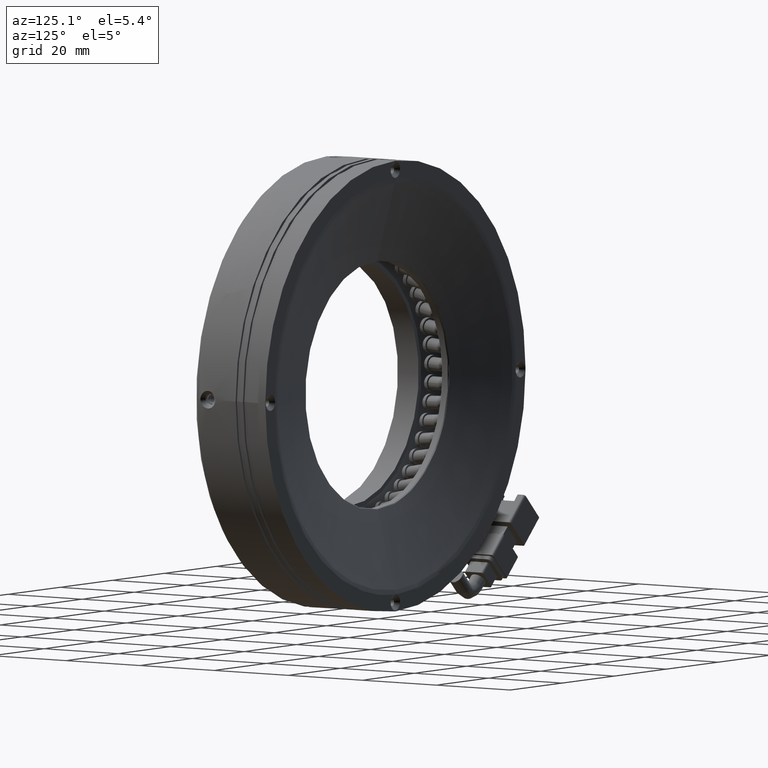
[diagram: clean part render]
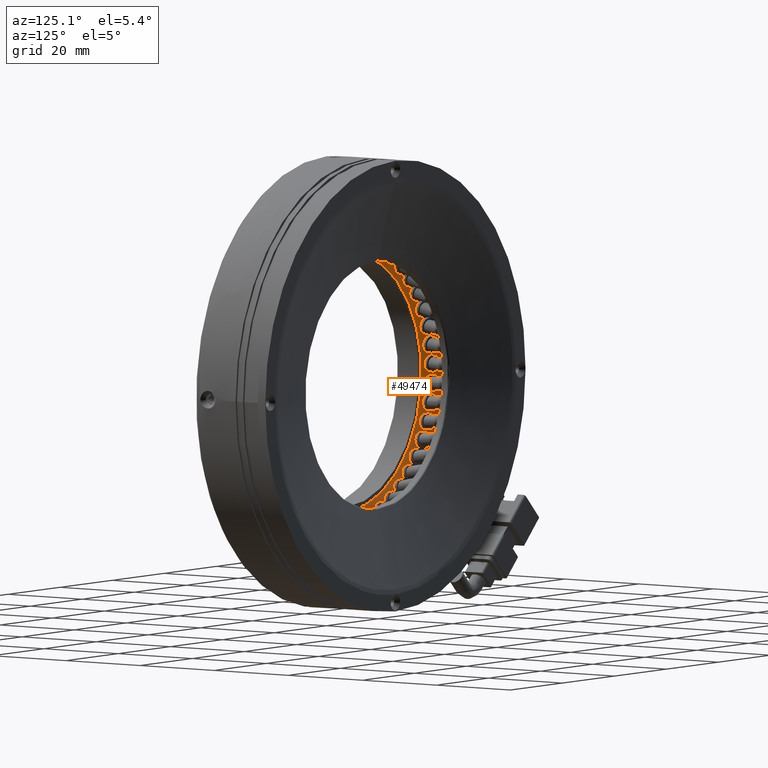
[diagram: same view with one face highlighted and labeled with its STEP entity id]
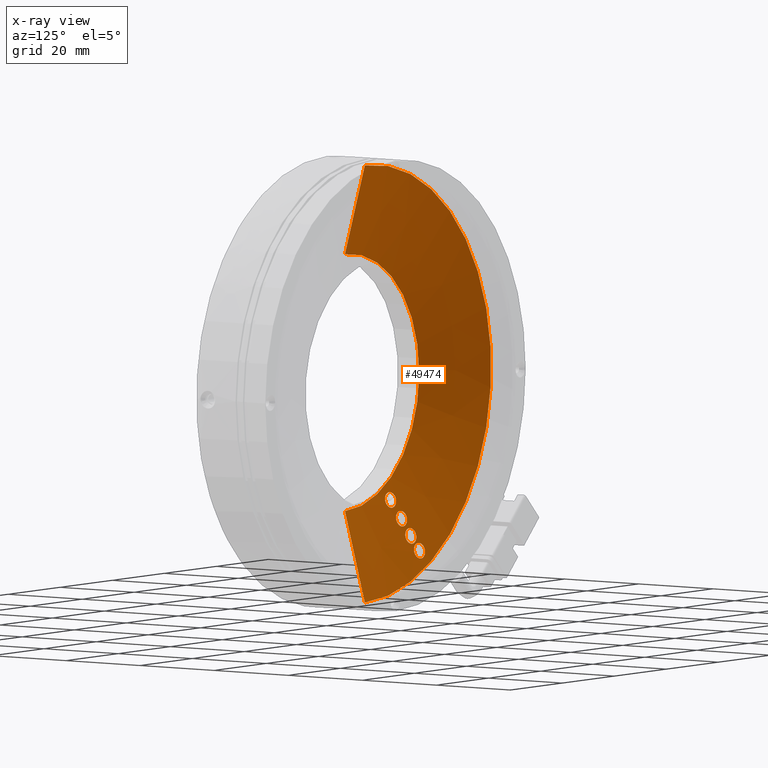
[diagram: x-ray of the same camera — body ghosted, the highlighted face saturated]
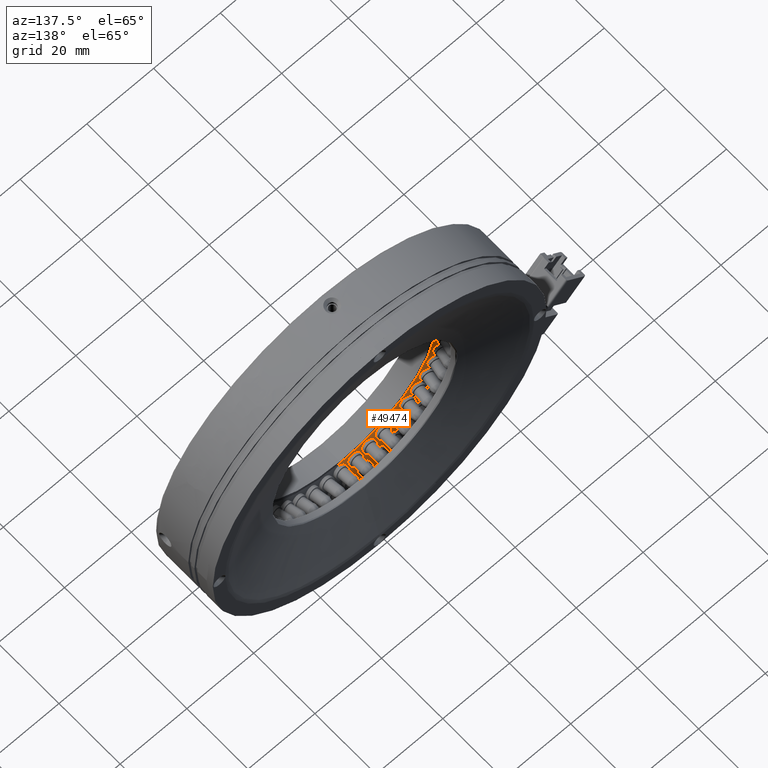
[diagram: same view with one face highlighted and labeled with its STEP entity id]
A machine part, auxiliary view. The second image highlights one B-rep face of the part: STEP entity #49474.
The next image is the same camera in x-ray: the body ghosted, the highlighted face saturated — about 0% of this face is hidden behind the body in this view.
A second angle (auxiliary view) of the same face is appended — the face is thin or edge-on in the first view.
In plain terms, the highlighted conical surface has half-angle 75 deg.
Its self-contained STEP definition (entity closure, byte-faithful):
#108 = ORIENTED_EDGE ( 'NONE', *, *, #99272, .T. ) ;
#124 = CARTESIAN_POINT ( 'NONE',  ( -20.07134492619202600, 11.15732163999265200, -37.14455200739044500 ) ) ;
#698 = CARTESIAN_POINT ( 'NONE',  ( -21.07270726914244100, 11.83276224320525400, -39.48731379058229900 ) ) ;
#2049 = EDGE_CURVE ( 'NONE', #74162, #163398, #143065, .T. ) ;
#2576 = CARTESIAN_POINT ( 'NONE',  ( -15.96565707125699900, 8.904084396380412200, -29.79405321790986600 ) ) ;
#2878 = CARTESIAN_POINT ( 'NONE',  ( -14.76085855152787700, 7.909257508632173900, -26.14620323783338000 ) ) ;
#3134 = CARTESIAN_POINT ( 'NONE',  ( -17.41759983586668200, 9.585898510337925100, -31.88627782372348200 ) ) ;
#3451 = CARTESIAN_POINT ( 'NONE',  ( -14.43473660028359800, 8.407522781328308900, -28.56283958477764900 ) ) ;
#3514 = CARTESIAN_POINT ( 'NONE',  ( -19.39775535826996500, 11.83998661717176900, -40.48733607017732800 ) ) ;
#4100 = CARTESIAN_POINT ( 'NONE',  ( -18.36470448374304000, 11.61614779560262900, -40.09593682916511200 ) ) ;
#4682 = CARTESIAN_POINT ( 'NONE',  ( -18.36565464677668300, 11.01315418087489000, -37.52942494602260800 ) ) ;
#4833 = CARTESIAN_POINT ( 'NONE',  ( -12.50610403647489700, 8.193404171267390600, -28.74361255428835100 ) ) ;
#5409 = CARTESIAN_POINT ( 'NONE',  ( -11.99584902476167300, 7.540095599657065300, -26.24095984930117700 ) ) ;
#5514 = DIRECTION ( 'NONE',  ( 0.0000000000000000000, 6.086749038515109300E-017, -1.000000000000000000 ) ) ;
#7036 = B_SPLINE_CURVE_WITH_KNOTS ( 'NONE', 3,
 ( #41933, #69531, #2576, #96559, #16005, #110036, #29522, #123604, #43086, #137167, #56575, #150724, #70110, #164221, #83626, #3134, #97124, #16568, #110629, #30104, #124177, #43657, #137757, #57142, #151293, #70692, #164796, #84215 ),
 .UNSPECIFIED., .F., .F.,
 ( 4, 2, 2, 2, 2, 2, 2, 2, 2, 2, 2, 2, 2, 4 ),
 ( 0.0000000000000000000, 0.0003418891721798383700, 0.0006837783443596767400, 0.001025667516539515000, 0.001367556688719353500, 0.002051335033079043000, 0.002735113377438732600, 0.003077002549618592500, 0.003418891721798452500, 0.003760780893978313300, 0.004102670066158173700, 0.004444559238338033200, 0.004786448410517893600, 0.005470226754877596100 ),
 .UNSPECIFIED. ) ;
#7398 = CARTESIAN_POINT ( 'NONE',  ( -15.91069010748489100, 10.18336687317798800, -35.34472451910326600 ) ) ;
#7972 = CARTESIAN_POINT ( 'NONE',  ( -17.41743837209346100, 10.00041139176695800, -33.70666807958742300 ) ) ;
#10526 = CARTESIAN_POINT ( 'NONE',  ( -14.86907633295296400, 9.497812917688504400, -33.00030870043931200 ) ) ;
#10762 = EDGE_LOOP ( 'NONE', ( #15898, #47278 ) ) ;
#10951 = CARTESIAN_POINT ( 'NONE',  ( 2.894644667477719800, 12.45126820901290700, -48.50000000000002100 ) ) ;
#11105 = CARTESIAN_POINT ( 'NONE',  ( -14.35862220822112300, 8.844565421112372800, -30.49768298695752500 ) ) ;
#11143 = CARTESIAN_POINT ( 'NONE',  ( 2.894644667477713500, 12.45126820901289500, 0.0000000000000000000 ) ) ;
#11979 = CARTESIAN_POINT ( 'NONE',  ( -17.64653836013272300, 10.03075272494898200, -33.69963600091436000 ) ) ;
#12536 = CARTESIAN_POINT ( 'NONE',  ( -19.32601856964397400, 10.74492025672024000, -35.79578931511415600 ) ) ;
#13489 = CARTESIAN_POINT ( 'NONE',  ( -20.38092093954148300, 11.23032824600114800, -37.27293837282363100 ) ) ;
#13764 = EDGE_CURVE ( 'NONE', #49903, #37456, #133724, .T. ) ;
#14046 = CARTESIAN_POINT ( 'NONE',  ( -20.89304404413490000, 11.87452964537149600, -39.77756570517183100 ) ) ;
#15898 = ORIENTED_EDGE ( 'NONE', *, *, #2049, .T. ) ;
#16005 = CARTESIAN_POINT ( 'NONE',  ( -16.29720917292671000, 8.966708800526667700, -29.85973840403716300 ) ) ;
#16313 = CARTESIAN_POINT ( 'NONE',  ( -15.06325039126045200, 8.086033510252285300, -26.73794146186126900 ) ) ;
#16568 = CARTESIAN_POINT ( 'NONE',  ( -17.29837563520305500, 9.640569860904493600, -32.20303925893775000 ) ) ;
#16882 = CARTESIAN_POINT ( 'NONE',  ( -14.14568083650710900, 8.410364416733466800, -28.74855327177288400 ) ) ;
#17006 = B_SPLINE_CURVE_WITH_KNOTS ( 'NONE', 3,
 ( #11979, #173138, #144892, #106028, #25462, #119576, #39027, #133145, #52502, #146633, #66082, #160147, #79561, #173723, #93119, #12536, #106601, #26047, #120140, #39605, #133721, #53109, #147220, #66667, #160732, #80156, #174329, #93677 ),
 .UNSPECIFIED., .F., .F.,
 ( 4, 2, 2, 2, 2, 2, 2, 2, 2, 2, 2, 2, 2, 4 ),
 ( 0.0000000000000000000, 0.0003418885495550977100, 0.0006837770991101954200, 0.001025665648665293200, 0.001367554198220390800, 0.002051331297330586400, 0.002735108396440781700, 0.003076996945995868700, 0.003418885495550956600, 0.003760774045106043600, 0.004102662594661131100, 0.004444551144216218500, 0.004786439693771306000, 0.005470216792881480900 ),
 .UNSPECIFIED. ) ;
#17117 = EDGE_LOOP ( 'NONE', ( #67674, #45031 ) ) ;
#17529 = CARTESIAN_POINT ( 'NONE',  ( -17.99514284423775800, 11.47147257269653800, -39.68051658040477700 ) ) ;
#18108 = CARTESIAN_POINT ( 'NONE',  ( -18.64137299954200000, 11.00276051483814400, -37.32712054812253700 ) ) ;
#18261 = CARTESIAN_POINT ( 'NONE',  ( -12.22804720790196600, 8.113959881389320100, -28.55576712476913000 ) ) ;
#18827 = CARTESIAN_POINT ( 'NONE',  ( -12.22943636147146100, 7.512698369297679900, -25.98883718600422600 ) ) ;
#20245 = CARTESIAN_POINT ( 'NONE',  ( -17.41908421034715100, 10.79033179824245700, -37.10472106701763600 ) ) ;
#20832 = CARTESIAN_POINT ( 'NONE',  ( -15.96638950058257200, 10.11179340304551700, -35.01195181487764800 ) ) ;
#21434 = LINE ( 'NONE', #40846, #97194 ) ;
#23993 = CARTESIAN_POINT ( 'NONE',  ( -14.59101902594545700, 9.418282049146173000, -32.81250252748014900 ) ) ;
#24111 = CARTESIAN_POINT ( 'NONE',  ( 2.894644667477718400, 7.092284360390364000, -28.50000000000001400 ) ) ;
#24549 = CARTESIAN_POINT ( 'NONE',  ( -14.59221306368449200, 8.816993902750674300, -30.24558461058218100 ) ) ;
#24589 = DIRECTION ( 'NONE',  ( 0.0000000000000000000, 7.153498870007449900E-017, -1.000000000000000000 ) ) ;
#24995 = FACE_BOUND ( 'NONE', #129741, .T. ) ;
#25462 = CARTESIAN_POINT ( 'NONE',  ( -18.20538690500593000, 10.12531495071369400, -33.76951037131099300 ) ) ;
#26047 = CARTESIAN_POINT ( 'NONE',  ( -19.20673325523459200, 10.80035898180938700, -36.11239342958122500 ) ) ;
#26984 = CARTESIAN_POINT ( 'NONE',  ( -20.65867439034661500, 11.31235132804843200, -37.46011918719190000 ) ) ;
#27552 = CARTESIAN_POINT ( 'NONE',  ( -20.65967507295662000, 11.90079693696828900, -40.03000648268812300 ) ) ;
#29522 = CARTESIAN_POINT ( 'NONE',  ( -16.60663917590207500, 9.040589269335338700, -29.98797963720369400 ) ) ;
#29836 = CARTESIAN_POINT ( 'NONE',  ( -15.10948930086185600, 8.217219710019110200, -27.29532534124089300 ) ) ;
#30104 = CARTESIAN_POINT ( 'NONE',  ( -17.11880936908934500, 9.681270041546655500, -32.49350349409906600 ) ) ;
#30416 = CARTESIAN_POINT ( 'NONE',  ( -13.60495850703569200, 8.381178655081996000, -28.93743338469204200 ) ) ;
#30480 = DIRECTION ( 'NONE',  ( 0.0000000000000000000, -1.000000000000000000, 0.0000000000000000000 ) ) ;
#30842 = CARTESIAN_POINT ( 'NONE',  ( -15.73856041632212800, 8.870803930761871600, -29.79008827550079600 ) ) ;
#31029 = ORIENTED_EDGE ( 'NONE', *, *, #37234, .T. ) ;
#31039 = CARTESIAN_POINT ( 'NONE',  ( -17.77658115618401500, 11.29533942117071500, -39.05272378861350500 ) ) ;
#31400 = CARTESIAN_POINT ( 'NONE',  ( 2.894644667477713500, 12.45126820901289500, 48.49999999999997200 ) ) ;
#31543 = CIRCLE ( 'NONE', #103192, 28.50000000000001400 ) ;
#31612 = CARTESIAN_POINT ( 'NONE',  ( -19.05803767890528300, 11.01398874570078100, -37.13281797831162100 ) ) ;
#31690 = B_SPLINE_CURVE_WITH_KNOTS ( 'NONE', 3,
 ( #167948, #73756, #20245, #114325, #33790, #127902, #47356, #141472, #60817, #154970, #74327, #168518, #87887, #7398, #101382, #20832, #114910, #34409, #128510, #47937, #142068, #61389, #155542, #74916, #169112, #88474, #7972, #101969 ),
 .UNSPECIFIED., .F., .F.,
 ( 4, 2, 2, 2, 2, 2, 2, 2, 2, 2, 2, 2, 2, 4 ),
 ( 0.005470216792881480900, 0.005812105354152385900, 0.006153993915423291000, 0.006495882476694196000, 0.006837771037965100100, 0.007521548160506910100, 0.008205325283048719300, 0.008547213844319634700, 0.008889102405590550100, 0.009230990966861463800, 0.009572879528132381000, 0.009914768089403294700, 0.01025665665067421200, 0.01094043377321604100 ),
 .UNSPECIFIED. ) ;
#31779 = CARTESIAN_POINT ( 'NONE',  ( -11.85857972441981200, 7.969313108550339000, -28.14024821081315500 ) ) ;
#32384 = CARTESIAN_POINT ( 'NONE',  ( -12.50505131714957100, 7.503459242302537500, -25.78633394038526900 ) ) ;
#33790 = CARTESIAN_POINT ( 'NONE',  ( -17.08691975191268500, 10.73214506343156300, -37.03805871895160400 ) ) ;
#34409 = CARTESIAN_POINT ( 'NONE',  ( -16.08616138314535200, 10.05273709040323700, -34.69618646571621000 ) ) ;
#35474 = CARTESIAN_POINT ( 'NONE',  ( -25.60535533252230100, 7.092284360390364000, 3.496582615872822200E-015 ) ) ;
#37234 = EDGE_CURVE ( 'NONE', #172827, #100062, #157976, .T. ) ;
#37456 = VERTEX_POINT ( 'NONE', #30842 ) ;
#37522 = CARTESIAN_POINT ( 'NONE',  ( -14.22153589493224900, 9.273542222160445500, -32.39703244218725300 ) ) ;
#37883 = CARTESIAN_POINT ( 'NONE',  ( 2.894644667477719800, 12.45126820901289500, -48.49999999999997200 ) ) ;
#38113 = CARTESIAN_POINT ( 'NONE',  ( -14.86785512582989600, 8.807440832407820600, -30.04313384103768700 ) ) ;
#39027 = CARTESIAN_POINT ( 'NONE',  ( -18.51492569355208000, 10.19856254571401700, -33.89785036146874100 ) ) ;
#39605 = CARTESIAN_POINT ( 'NONE',  ( -19.02709698001444800, 10.84186682951744800, -36.40269956876972700 ) ) ;
#40542 = CARTESIAN_POINT ( 'NONE',  ( -21.02794986866085800, 11.45916316887823800, -37.87504384877596000 ) ) ;
#40846 = CARTESIAN_POINT ( 'NONE',  ( 2.894644667477713500, 12.45126820901290700, 48.50000000000002100 ) ) ;
#41135 = CARTESIAN_POINT ( 'NONE',  ( -20.38405782023099300, 11.91043628029596100, -40.23248595744466600 ) ) ;
#41933 = CARTESIAN_POINT ( 'NONE',  ( -15.73856041632212800, 8.870803930761871600, -29.79008827550079600 ) ) ;
#42835 = CARTESIAN_POINT ( 'NONE',  ( -13.60261584287502300, 7.601945955200343400, -25.53691298503605700 ) ) ;
#43086 = CARTESIAN_POINT ( 'NONE',  ( -16.88427126724759100, 9.123239438564818100, -30.17506644325624200 ) ) ;
#43400 = CARTESIAN_POINT ( 'NONE',  ( -15.05437257491874800, 8.283971280049870600, -27.62919681292622100 ) ) ;
#43657 = CARTESIAN_POINT ( 'NONE',  ( -16.88553705563116800, 9.706506276640356000, -32.74614066003944400 ) ) ;
#44144 = CARTESIAN_POINT ( 'NONE',  ( -13.37561697159466900, 8.352601738422617200, -28.94400709240514800 ) ) ;
#44584 = CARTESIAN_POINT ( 'NONE',  ( -17.78785237140300200, 11.19122966710728000, -38.60645028531179400 ) ) ;
#44749 = CARTESIAN_POINT ( 'NONE',  ( -13.37561697159466900, 8.352601738422617200, -28.94400709240514800 ) ) ;
#45031 = ORIENTED_EDGE ( 'NONE', *, *, #13764, .T. ) ;
#45185 = CARTESIAN_POINT ( 'NONE',  ( -19.51242938283743600, 11.06322807416686200, -37.07458643048125400 ) ) ;
#45332 = CARTESIAN_POINT ( 'NONE',  ( -11.64018593815377900, 7.793141552488700400, -27.51240313493333600 ) ) ;
#45911 = CARTESIAN_POINT ( 'NONE',  ( -12.92149855731528000, 7.516652867198725800, -25.59168277277819900 ) ) ;
#47278 = ORIENTED_EDGE ( 'NONE', *, *, #99279, .T. ) ;
#47356 = CARTESIAN_POINT ( 'NONE',  ( -16.77691006817039800, 10.66239908350844700, -36.90890696195739900 ) ) ;
#47937 = CARTESIAN_POINT ( 'NONE',  ( -16.26621690242204800, 10.00811069729198300, -34.40660356180691800 ) ) ;
#49474 = ADVANCED_FACE ( 'NONE', ( #132401, #168188, #24995, #163907, #128140 ), #111202, .F. ) ;
#49794 = CARTESIAN_POINT ( 'NONE',  ( -15.73858863215989800, 9.657099288564133100, -33.20062190755059100 ) ) ;
#49903 = VERTEX_POINT ( 'NONE', #49794 ) ;
#49917 = CARTESIAN_POINT ( 'NONE',  ( -15.51115020251326700, 9.626320067712008200, -33.19608009071856700 ) ) ;
#50825 = ORIENTED_EDGE ( 'NONE', *, *, #151378, .T. ) ;
#51051 = CARTESIAN_POINT ( 'NONE',  ( -14.00308331014699100, 9.097449542827348500, -31.76918800421138700 ) ) ;
#51620 = CARTESIAN_POINT ( 'NONE',  ( -15.28437115263364300, 8.820023075654665600, -29.84859253004874400 ) ) ;
#52463 = ORIENTED_EDGE ( 'NONE', *, *, #128464, .F. ) ;
#52502 = CARTESIAN_POINT ( 'NONE',  ( -18.79264900580274400, 10.28076406578258800, -34.08499833835409700 ) ) ;
#53109 = CARTESIAN_POINT ( 'NONE',  ( -18.79375150751552300, 10.86790461644606700, -36.65518661344083300 ) ) ;
#53485 = CARTESIAN_POINT ( 'NONE',  ( -19.62699230488392000, 11.07830397796745600, -37.07108875138996500 ) ) ;
#54033 = CARTESIAN_POINT ( 'NONE',  ( -21.24683767511838900, 11.63286381177207900, -38.50340047397832400 ) ) ;
#54581 = VERTEX_POINT ( 'NONE', #44144 ) ;
#54609 = CARTESIAN_POINT ( 'NONE',  ( -19.96728432693828000, 11.90002028640021000, -40.42660011746503600 ) ) ;
#56308 = CARTESIAN_POINT ( 'NONE',  ( -13.93407773004055600, 7.665167711475738200, -25.60248621363267700 ) ) ;
#56575 = CARTESIAN_POINT ( 'NONE',  ( -17.25341611624926900, 9.270462014989169200, -30.58996417440024000 ) ) ;
#56887 = CARTESIAN_POINT ( 'NONE',  ( -14.93520576122079600, 8.338069434126527600, -27.94607971412843700 ) ) ;
#57129 = VERTEX_POINT ( 'NONE', #31400 ) ;
#57142 = CARTESIAN_POINT ( 'NONE',  ( -16.61000996095424000, 9.715216573235688100, -32.94878589913924600 ) ) ;
#57516 = CARTESIAN_POINT ( 'NONE',  ( -19.06307440928210500, 11.78643022109189300, -40.44249651596078400 ) ) ;
#58101 = CARTESIAN_POINT ( 'NONE',  ( -17.86502388792075600, 11.12395935615090000, -38.27968473781727700 ) ) ;
#58111 = CARTESIAN_POINT ( 'NONE',  ( -13.37557869579004700, 7.568248097622798400, -25.53302637597392200 ) ) ;
#58219 = ORIENTED_EDGE ( 'NONE', *, *, #156517, .F. ) ;
#58740 = B_SPLINE_CURVE_WITH_KNOTS ( 'NONE', 3,
 ( #97504, #3514, #138139, #57516, #151650, #71080, #165160, #84577, #4100, #98089, #17529, #111587, #31039, #125127, #44584, #138735, #58101, #152221, #71667, #165730, #85166, #4682, #98659, #18108, #112168, #31612, #125712, #45185 ),
 .UNSPECIFIED., .F., .F.,
 ( 4, 2, 2, 2, 2, 2, 2, 2, 2, 2, 2, 2, 2, 4 ),
 ( 0.005470210256410163600, 0.005812098401798694100, 0.006153986547187224500, 0.006495874692575755000, 0.006837762837964285500, 0.007521539128741346400, 0.008205315419518407300, 0.008547203564906928300, 0.008889091710295449200, 0.009230979855683968400, 0.009572868001072491100, 0.009914756146461010200, 0.01025664429184953100, 0.01094042058262657300 ),
 .UNSPECIFIED. ) ;
#58835 = CARTESIAN_POINT ( 'NONE',  ( -11.65157378819248500, 7.689066852822089800, -27.06612063143915500 ) ) ;
#59408 = CARTESIAN_POINT ( 'NONE',  ( -13.37557869579004700, 7.568248097622798400, -25.53302637597392200 ) ) ;
#60817 = CARTESIAN_POINT ( 'NONE',  ( -16.49880647969251200, 10.58302750243068900, -36.72110308262412600 ) ) ;
#61389 = CARTESIAN_POINT ( 'NONE',  ( -16.49984978376821600, 9.979935115270450300, -34.15461216419154800 ) ) ;
#63984 = CARTESIAN_POINT ( 'NONE',  ( -15.73858863215989800, 9.657099288564133100, -33.20062190755059100 ) ) ;
#64568 = CARTESIAN_POINT ( 'NONE',  ( -14.01441838958722200, 8.993496378871588700, -31.32287771771660100 ) ) ;
#65167 = CARTESIAN_POINT ( 'NONE',  ( -15.73856041632212800, 8.870803930761871600, -29.79008827550079600 ) ) ;
#66082 = CARTESIAN_POINT ( 'NONE',  ( -19.16189564815643800, 10.42769795542121300, -34.49990640377528500 ) ) ;
#66667 = CARTESIAN_POINT ( 'NONE',  ( -18.51815242967903100, 10.87736330376778100, -36.85769975127055200 ) ) ;
#67051 = CARTESIAN_POINT ( 'NONE',  ( -19.51242938283743600, 11.06322807416686200, -37.07458643048125400 ) ) ;
#67620 = CARTESIAN_POINT ( 'NONE',  ( -21.23609217386597000, 11.73305365095468900, -38.95058325362259700 ) ) ;
#67674 = ORIENTED_EDGE ( 'NONE', *, *, #131513, .T. ) ;
#67786 = EDGE_LOOP ( 'NONE', ( #159931, #108, #31029, #52463, #58219 ) ) ;
#68224 = CARTESIAN_POINT ( 'NONE',  ( -19.51244733561791700, 11.85410085796144000, -40.48406150133206400 ) ) ;
#69531 = CARTESIAN_POINT ( 'NONE',  ( -15.85307027203413100, 8.886264859539581500, -29.78652278536557000 ) ) ;
#69849 = CARTESIAN_POINT ( 'NONE',  ( -14.24342620658043900, 7.739553826103499300, -25.73063462440129400 ) ) ;
#70110 = CARTESIAN_POINT ( 'NONE',  ( -17.47229565022644600, 9.443425693208430600, -31.21852921261496800 ) ) ;
#70429 = CARTESIAN_POINT ( 'NONE',  ( -14.75569685554542000, 8.378210080296856400, -28.23665802438603100 ) ) ;
#70692 = CARTESIAN_POINT ( 'NONE',  ( -16.19334340697047000, 9.703738559462861300, -33.14307262673187200 ) ) ;
#71080 = CARTESIAN_POINT ( 'NONE',  ( -18.74253676516880800, 11.71988489731371200, -40.33324953379160100 ) ) ;
#71667 = CARTESIAN_POINT ( 'NONE',  ( -18.00635461902810900, 11.06921247076107500, -37.96966920520294800 ) ) ;
#71824 = CARTESIAN_POINT ( 'NONE',  ( -12.92631608228887800, 8.284430898573203800, -28.90244917075746400 ) ) ;
#72388 = CARTESIAN_POINT ( 'NONE',  ( -11.72881447070308700, 7.621942859571979600, -26.73933925972288600 ) ) ;
#73273 = CARTESIAN_POINT ( 'NONE',  ( -19.51244733561791700, 11.85410085796144000, -40.48406150133206400 ) ) ;
#73756 = CARTESIAN_POINT ( 'NONE',  ( -17.53186805223375400, 10.80670900699779400, -37.11256826479512900 ) ) ;
#74162 = VERTEX_POINT ( 'NONE', #114718 ) ;
#74327 = CARTESIAN_POINT ( 'NONE',  ( -16.12924861669801800, 10.43841061119193000, -36.30565816914010200 ) ) ;
#74916 = CARTESIAN_POINT ( 'NONE',  ( -16.77555817266825500, 9.969663329599431000, -33.95228756524262100 ) ) ;
#75054 = VERTEX_POINT ( 'NONE', #135610 ) ;
#77123 = EDGE_CURVE ( 'NONE', #123788, #54581, #151166, .T. ) ;
#77520 = CARTESIAN_POINT ( 'NONE',  ( -15.28928533173979600, 9.588935512054584700, -33.15909423374454700 ) ) ;
#78086 = CARTESIAN_POINT ( 'NONE',  ( -14.09162267370794600, 8.926445905081532600, -30.99607369466933400 ) ) ;
#79262 = CARTESIAN_POINT ( 'NONE',  ( 2.894644667477713500, 12.45126820901290700, 0.0000000000000000000 ) ) ;
#79561 = CARTESIAN_POINT ( 'NONE',  ( -19.38079264910602700, 10.60119412460614400, -35.12831721519586400 ) ) ;
#80156 = CARTESIAN_POINT ( 'NONE',  ( -18.10139446963804800, 10.86678359099734000, -37.05183959073977500 ) ) ;
#80523 = CARTESIAN_POINT ( 'NONE',  ( -19.96123577368381800, 11.13512108810913800, -37.11517167628721100 ) ) ;
#80977 = EDGE_CURVE ( 'NONE', #152738, #111212, #17006, .T. ) ;
#81102 = CARTESIAN_POINT ( 'NONE',  ( -21.15936767965559200, 11.79699059290749800, -39.27812225090968900 ) ) ;
#83365 = CARTESIAN_POINT ( 'NONE',  ( -14.52099316791889200, 7.822567324129038500, -25.91765899364670700 ) ) ;
#83407 = CARTESIAN_POINT ( 'NONE',  ( -17.64653836013272300, 10.03075272494898200, -33.69963600091436000 ) ) ;
#83626 = CARTESIAN_POINT ( 'NONE',  ( -17.46162234613316500, 9.542531492633141700, -31.66595708971392400 ) ) ;
#83950 = CARTESIAN_POINT ( 'NONE',  ( -14.52247522425538400, 8.402945037980080300, -28.48939347218892900 ) ) ;
#84215 = CARTESIAN_POINT ( 'NONE',  ( -15.73858863215989800, 9.657099288564133100, -33.20062190755059100 ) ) ;
#84577 = CARTESIAN_POINT ( 'NONE',  ( -18.45406544956738100, 11.64380640318560400, -40.16538783809799900 ) ) ;
#85166 = CARTESIAN_POINT ( 'NONE',  ( -18.20374556660963300, 11.03012160970497400, -37.69327044608406400 ) ) ;
#85322 = CARTESIAN_POINT ( 'NONE',  ( -12.60582170263981900, 8.217733220252261700, -28.79316131570638900 ) ) ;
#85871 = CARTESIAN_POINT ( 'NONE',  ( -11.87018198817370700, 7.567544341969877100, -26.42927650700976700 ) ) ;
#85980 = DIRECTION ( 'NONE',  ( 0.0000000000000000000, -1.000000000000000000, 0.0000000000000000000 ) ) ;
#86396 = VECTOR ( 'NONE', #118475, 1000.000000000000000 ) ;
#87887 = CARTESIAN_POINT ( 'NONE',  ( -15.91071264671420800, 10.26222982244798000, -35.67786887504146200 ) ) ;
#88474 = CARTESIAN_POINT ( 'NONE',  ( -17.19219440657328600, 9.981148973235590900, -33.75793780595074600 ) ) ;
#90456 = CARTESIAN_POINT ( 'NONE',  ( -15.62391592937964500, 9.642830038531863900, -33.20391258115490300 ) ) ;
#91047 = CARTESIAN_POINT ( 'NONE',  ( -14.96879323455542900, 9.522170984663038200, -33.04984393475085400 ) ) ;
#91643 = CARTESIAN_POINT ( 'NONE',  ( -14.23296366641195300, 8.872060423028195000, -30.68599789821925600 ) ) ;
#93119 = CARTESIAN_POINT ( 'NONE',  ( -19.37007429409705100, 10.70108725409718200, -35.57556775772035700 ) ) ;
#93677 = CARTESIAN_POINT ( 'NONE',  ( -17.64656003796206800, 10.82082505429723400, -37.10929664997954800 ) ) ;
#94053 = CARTESIAN_POINT ( 'NONE',  ( -20.28132721737135900, 11.20499390885701500, -37.22364647857799000 ) ) ;
#94625 = CARTESIAN_POINT ( 'NONE',  ( -21.01846962091653000, 11.84851005531066700, -39.58888689565461800 ) ) ;
#96559 = CARTESIAN_POINT ( 'NONE',  ( -16.18715333948591700, 8.944167656718278200, -29.83041653911273600 ) ) ;
#96865 = CARTESIAN_POINT ( 'NONE',  ( -14.89007669325534900, 7.970013329065557700, -26.33253428006049600 ) ) ;
#97124 = CARTESIAN_POINT ( 'NONE',  ( -17.38497581310059900, 9.605496148556971600, -31.99370354333820600 ) ) ;
#97194 = VECTOR ( 'NONE', #148476, 1000.000000000000000 ) ;
#97452 = CARTESIAN_POINT ( 'NONE',  ( -14.24698862750605100, 8.411249922546623700, -28.69211179455134800 ) ) ;
#97504 = CARTESIAN_POINT ( 'NONE',  ( -19.51244733561791700, 11.85410085796144000, -40.48406150133206400 ) ) ;
#98089 = CARTESIAN_POINT ( 'NONE',  ( -18.12446503109555000, 11.53179797001635600, -39.86691322015255400 ) ) ;
#98257 = EDGE_CURVE ( 'NONE', #111212, #152738, #31690, .T. ) ;
#98659 = CARTESIAN_POINT ( 'NONE',  ( -18.45349255281855200, 11.00771080743255200, -37.45615661856007300 ) ) ;
#98822 = CARTESIAN_POINT ( 'NONE',  ( -12.31739287048646300, 8.141616126457828200, -28.62524018267992100 ) ) ;
#99272 = EDGE_CURVE ( 'NONE', #164075, #172827, #31543, .T. ) ;
#99279 = EDGE_CURVE ( 'NONE', #163398, #74162, #58740, .T. ) ;
#99404 = CARTESIAN_POINT ( 'NONE',  ( -12.06756349018882300, 7.529070229304023700, -26.15278216664046000 ) ) ;
#100062 = VERTEX_POINT ( 'NONE', #37883 ) ;
#101382 = CARTESIAN_POINT ( 'NONE',  ( -15.92200903160129900, 10.15804028416262000, -35.23161388300103900 ) ) ;
#101969 = CARTESIAN_POINT ( 'NONE',  ( -17.64653836013272300, 10.03075272494898200, -33.69963600091436000 ) ) ;
#103192 = AXIS2_PLACEMENT_3D ( 'NONE', #111001, #30480, #124552 ) ;
#103748 = AXIS2_PLACEMENT_3D ( 'NONE', #79262, #119856, #174022 ) ;
#104528 = CARTESIAN_POINT ( 'NONE',  ( -14.68036527003149400, 9.445967104690304000, -32.88196265324043600 ) ) ;
#105113 = CARTESIAN_POINT ( 'NONE',  ( -14.43033541301512200, 8.833498256575207800, -30.40951001763846400 ) ) ;
#105152 = DIRECTION ( 'NONE',  ( 0.0000000000000000000, -1.000000000000000000, 0.0000000000000000000 ) ) ;
#106028 = CARTESIAN_POINT ( 'NONE',  ( -18.09529139804138300, 10.10302266184103600, -33.74014791663397300 ) ) ;
#106463 = ORIENTED_EDGE ( 'NONE', *, *, #77123, .T. ) ;
#106601 = CARTESIAN_POINT ( 'NONE',  ( -19.29337543899236400, 10.76476594831115800, -35.90316343839592200 ) ) ;
#107560 = CARTESIAN_POINT ( 'NONE',  ( -20.56941851015557900, 11.28390805077282600, -37.39085019710434200 ) ) ;
#108133 = CARTESIAN_POINT ( 'NONE',  ( -20.82142482322025500, 11.88501813035476900, -39.86588515014589300 ) ) ;
#110036 = CARTESIAN_POINT ( 'NONE',  ( -16.50709179031736400, 9.014988487971637100, -29.93873107372689500 ) ) ;
#110342 = CIRCLE ( 'NONE', #118446, 48.50000000000001400 ) ;
#110371 = CARTESIAN_POINT ( 'NONE',  ( -15.10897594265143500, 8.142506733014460700, -26.96122392523635000 ) ) ;
#110629 = CARTESIAN_POINT ( 'NONE',  ( -17.24417038013270800, 9.655956488371071300, -32.30468514311740300 ) ) ;
#110935 = CARTESIAN_POINT ( 'NONE',  ( -13.83035936715450200, 8.399382412638477300, -28.88645801399289300 ) ) ;
#111001 = CARTESIAN_POINT ( 'NONE',  ( 2.894644667477713500, 7.092284360390364000, 0.0000000000000000000 ) ) ;
#111202 = CONICAL_SURFACE ( 'NONE', #103748, 48.50000000000002100, 1.308996938995743000 ) ;
#111212 = VERTEX_POINT ( 'NONE', #141164 ) ;
#111587 = CARTESIAN_POINT ( 'NONE',  ( -17.82208595705853300, 11.35385154543962100, -39.27552444890798700 ) ) ;
#112168 = CARTESIAN_POINT ( 'NONE',  ( -18.74271426373494300, 11.00328618728856400, -37.27073727090518000 ) ) ;
#112327 = CARTESIAN_POINT ( 'NONE',  ( -11.98785887365924200, 8.029624452716626900, -28.32668145511093300 ) ) ;
#112915 = CARTESIAN_POINT ( 'NONE',  ( -12.31724581515215500, 7.507604855750745500, -25.91550980696561600 ) ) ;
#114325 = CARTESIAN_POINT ( 'NONE',  ( -17.19718438471302900, 10.75318042355154100, -37.06771257880421200 ) ) ;
#114718 = CARTESIAN_POINT ( 'NONE',  ( -19.51242938283743600, 11.06322807416686200, -37.07458643048125400 ) ) ;
#114910 = CARTESIAN_POINT ( 'NONE',  ( -15.99919866989550200, 10.09071339702202300, -34.90486385187408300 ) ) ;
#118062 = CARTESIAN_POINT ( 'NONE',  ( -14.35082484889072100, 9.333876924485419800, -32.58345022757760000 ) ) ;
#118446 = AXIS2_PLACEMENT_3D ( 'NONE', #11143, #105152, #24589 ) ;
#118475 = DIRECTION ( 'NONE',  ( 1.182917971378668400E-016, 0.2588190451025247900, -0.9659258262890672000 ) ) ;
#118650 = CARTESIAN_POINT ( 'NONE',  ( -14.68002913373481500, 8.811811414274659500, -30.17227129549105400 ) ) ;
#119576 = CARTESIAN_POINT ( 'NONE',  ( -18.41534376517541500, 10.17315366739463300, -33.84857270754284300 ) ) ;
#119856 = DIRECTION ( 'NONE',  ( 0.0000000000000000000, 1.000000000000000000, 0.0000000000000000000 ) ) ;
#120140 = CARTESIAN_POINT ( 'NONE',  ( -19.15250496472052400, 10.81601674641503900, -36.21398551229572900 ) ) ;
#121099 = CARTESIAN_POINT ( 'NONE',  ( -20.89867907952598400, 11.39845408903109100, -37.68873619721933500 ) ) ;
#121670 = CARTESIAN_POINT ( 'NONE',  ( -20.57189014640664800, 11.90584491902963600, -40.10336658271700800 ) ) ;
#122178 = CARTESIAN_POINT ( 'NONE',  ( -13.37557869579004700, 7.568248097622798400, -25.53302637597392200 ) ) ;
#123604 = CARTESIAN_POINT ( 'NONE',  ( -16.79505287481200400, 9.094615926945671400, -30.10582268316159500 ) ) ;
#123788 = VERTEX_POINT ( 'NONE', #58111 ) ;
#123922 = CARTESIAN_POINT ( 'NONE',  ( -15.09835986172196200, 8.240969494113329600, -27.40879696754929300 ) ) ;
#124177 = CARTESIAN_POINT ( 'NONE',  ( -17.04722265539864200, 9.691409672523338500, -32.58189049151151600 ) ) ;
#124496 = CARTESIAN_POINT ( 'NONE',  ( -13.37561697159466900, 8.352601738422617200, -28.94400709240514800 ) ) ;
#124552 = DIRECTION ( 'NONE',  ( 0.0000000000000000000, 6.086749038515109300E-017, -1.000000000000000000 ) ) ;
#125127 = CARTESIAN_POINT ( 'NONE',  ( -17.77654000960058800, 11.21653481729388000, -38.71956620116971200 ) ) ;
#125712 = CARTESIAN_POINT ( 'NONE',  ( -19.28330353582057200, 11.03307626618090300, -37.08158178875311300 ) ) ;
#125887 = CARTESIAN_POINT ( 'NONE',  ( -11.68562771672986100, 7.851679892119712200, -27.73521152484262900 ) ) ;
#126453 = CARTESIAN_POINT ( 'NONE',  ( -12.60634529274663200, 7.504445914525096100, -25.72986919124901900 ) ) ;
#127902 = CARTESIAN_POINT ( 'NONE',  ( -16.87664261513522500, 10.68668769480173000, -36.95844431905178600 ) ) ;
#128140 = FACE_OUTER_BOUND ( 'NONE', #67786, .T. ) ;
#128464 = EDGE_CURVE ( 'NONE', #57129, #100062, #110342, .T. ) ;
#128510 = CARTESIAN_POINT ( 'NONE',  ( -16.14054353774678300, 10.03593485587917100, -34.59485982674709000 ) ) ;
#129741 = EDGE_LOOP ( 'NONE', ( #160305, #169093 ) ) ;
#131513 = EDGE_CURVE ( 'NONE', #37456, #49903, #7036, .T. ) ;
#131662 = CARTESIAN_POINT ( 'NONE',  ( -14.04854979578390200, 9.155936589407202700, -31.99200394347806400 ) ) ;
#132264 = CARTESIAN_POINT ( 'NONE',  ( -14.96916324930931500, 8.808289580839494100, -29.98669360208726100 ) ) ;
#132401 = FACE_BOUND ( 'NONE', #149485, .T. ) ;
#133145 = CARTESIAN_POINT ( 'NONE',  ( -18.70340227868988600, 10.25226885300572600, -34.01573861622506500 ) ) ;
#133721 = CARTESIAN_POINT ( 'NONE',  ( -18.95548609831545400, 10.85227480166390500, -36.49103549213833700 ) ) ;
#133724 = B_SPLINE_CURVE_WITH_KNOTS ( 'NONE', 3,
 ( #63984, #90456, #49917, #77520, #171685, #91047, #10526, #104528, #23993, #118062, #37522, #131662, #51051, #145164, #64568, #158688, #78086, #172252, #91643, #11105, #105113, #24549, #118650, #38113, #132264, #51620, #145725, #65167 ),
 .UNSPECIFIED., .F., .F.,
 ( 4, 2, 2, 2, 2, 2, 2, 2, 2, 2, 2, 2, 2, 4 ),
 ( 0.005470226754877596100, 0.005812115955933704200, 0.006154005156989813200, 0.006495894358045921400, 0.006837783559102030400, 0.007521561961214235300, 0.008205340363326440300, 0.008547229564382544100, 0.008889118765438646200, 0.009231007966494748200, 0.009572897167550850300, 0.009914786368606952300, 0.01025667556966305600, 0.01094045397177526500 ),
 .UNSPECIFIED. ) ;
#134097 = CARTESIAN_POINT ( 'NONE',  ( -19.73963293236170800, 11.09574931950624900, -37.07868481924520400 ) ) ;
#134654 = CARTESIAN_POINT ( 'NONE',  ( -21.20114379542402000, 11.57576213828377700, -38.28027292668184600 ) ) ;
#135225 = CARTESIAN_POINT ( 'NONE',  ( -20.28271138801822800, 11.90994939377512400, -40.28886023419991600 ) ) ;
#135610 = CARTESIAN_POINT ( 'NONE',  ( 2.894644667477713500, 7.092284360390364000, 28.50000000000001400 ) ) ;
#136894 = CARTESIAN_POINT ( 'NONE',  ( -13.82405206111785000, 7.642431130292776800, -25.57320092034982300 ) ) ;
#137167 = CARTESIAN_POINT ( 'NONE',  ( -17.12418305692249700, 9.209717264872919500, -30.40364091630376100 ) ) ;
#137496 = CARTESIAN_POINT ( 'NONE',  ( -15.02176740894747000, 8.303379224872893300, -27.73666308653582400 ) ) ;
#137757 = CARTESIAN_POINT ( 'NONE',  ( -16.79778341035464700, 9.711230989763036400, -32.81955960604624800 ) ) ;
#138139 = CARTESIAN_POINT ( 'NONE',  ( -19.28497219674729000, 11.82360348010275400, -40.47949353637382300 ) ) ;
#138735 = CARTESIAN_POINT ( 'NONE',  ( -17.83222052313154300, 11.14502173662831700, -38.38677777034493500 ) ) ;
#138896 = CARTESIAN_POINT ( 'NONE',  ( -13.26094618313197100, 8.338313277508371300, -28.94729394685625200 ) ) ;
#139473 = CARTESIAN_POINT ( 'NONE',  ( -11.64023280989187500, 7.714354816632027900, -27.17923841173241700 ) ) ;
#140066 = CARTESIAN_POINT ( 'NONE',  ( -13.14661752237832100, 7.536908262020487500, -25.54023565335966200 ) ) ;
#141164 = CARTESIAN_POINT ( 'NONE',  ( -17.64656003796206800, 10.82082505429723400, -37.10929664997954800 ) ) ;
#141472 = CARTESIAN_POINT ( 'NONE',  ( -16.58816805021873400, 10.61066765250421700, -36.79056094169759200 ) ) ;
#142068 = CARTESIAN_POINT ( 'NONE',  ( -16.33794126911931200, 9.996858456120577300, -34.31846340398718100 ) ) ;
#142277 = B_SPLINE_CURVE_WITH_KNOTS ( 'NONE', 3,
 ( #44749, #138896, #152396, #71824, #165890, #85322, #4833, #98822, #18261, #112327, #31779, #125887, #45332, #139473, #58835, #152948, #72388, #166474, #85871, #5409, #99404, #18827, #112915, #32384, #126453, #45911, #140066, #59408 ),
 .UNSPECIFIED., .F., .F.,
 ( 4, 2, 2, 2, 2, 2, 2, 2, 2, 2, 2, 2, 2, 4 ),
 ( 0.005470243100537083500, 0.005812133356163347700, 0.006154023611789611800, 0.006495913867415876000, 0.006837804123042140100, 0.007521584634294668400, 0.008205365145547196700, 0.008547255401173466100, 0.008889145656799733700, 0.009231035912426003100, 0.009572926168052272400, 0.009914816423678540100, 0.01025670667930481100, 0.01094048719055735200 ),
 .UNSPECIFIED. ) ;
#143065 = B_SPLINE_CURVE_WITH_KNOTS ( 'NONE', 3,
 ( #67051, #53485, #134097, #80523, #124, #94053, #13489, #107560, #26984, #121099, #40542, #134654, #54033, #148173, #67620, #161692, #81102, #698, #94625, #14046, #108133, #27552, #121670, #41135, #135225, #54609, #148778, #68224 ),
 .UNSPECIFIED., .F., .F.,
 ( 4, 2, 2, 2, 2, 2, 2, 2, 2, 2, 2, 2, 2, 4 ),
 ( 0.0000000000000000000, 0.0003418881410256299100, 0.0006837762820512598200, 0.001025664423076889600, 0.001367552564102519600, 0.002051328846153793600, 0.002735105128205067100, 0.003076993269230704200, 0.003418881410256341400, 0.003760769551281979000, 0.004102657692307615800, 0.004444545833333253400, 0.004786433974358890100, 0.005470210256410163600 ),
 .UNSPECIFIED. ) ;
#144892 = CARTESIAN_POINT ( 'NONE',  ( -17.87371551404333700, 10.06346440575995000, -33.70369739032835800 ) ) ;
#145164 = CARTESIAN_POINT ( 'NONE',  ( -14.00309098656766000, 9.018752483440584600, -31.43600353370105800 ) ) ;
#145428 = EDGE_CURVE ( 'NONE', #75054, #164075, #161440, .T. ) ;
#145725 = CARTESIAN_POINT ( 'NONE',  ( -15.50954068555492400, 8.839882070594773800, -29.79721925637352700 ) ) ;
#145823 = AXIS2_PLACEMENT_3D ( 'NONE', #166583, #85980, #5514 ) ;
#146633 = CARTESIAN_POINT ( 'NONE',  ( -19.03263199385135000, 10.36697626310883500, -34.31359749135256000 ) ) ;
#147220 = CARTESIAN_POINT ( 'NONE',  ( -18.70597340273864300, 10.87288634230623100, -36.72855937180520400 ) ) ;
#148173 = CARTESIAN_POINT ( 'NONE',  ( -21.24725974722854000, 11.70882808125346100, -38.83721687388848700 ) ) ;
#148476 = DIRECTION ( 'NONE',  ( 0.0000000000000000000, 0.2588190451025247900, 0.9659258262890672000 ) ) ;
#148778 = CARTESIAN_POINT ( 'NONE',  ( -19.74183128738659900, 11.88232933918056100, -40.47751236372514700 ) ) ;
#149485 = EDGE_LOOP ( 'NONE', ( #106463, #50825 ) ) ;
#149873 = CARTESIAN_POINT ( 'NONE',  ( -13.49005926178812800, 7.583918012589506000, -25.52942173793307000 ) ) ;
#150455 = CARTESIAN_POINT ( 'NONE',  ( -14.14390452114818300, 7.713798089269961800, -25.68141417863948200 ) ) ;
#150724 = CARTESIAN_POINT ( 'NONE',  ( -17.42658730277198800, 9.386711324981554600, -30.99530510622595600 ) ) ;
#151044 = CARTESIAN_POINT ( 'NONE',  ( -14.88102035724539900, 8.353262531175868600, -28.04776544152862900 ) ) ;
#151166 = B_SPLINE_CURVE_WITH_KNOTS ( 'NONE', 3,
 ( #122178, #149873, #42835, #136894, #56308, #150455, #69849, #163953, #83365, #2878, #96865, #16313, #110371, #29836, #123922, #43400, #137496, #56887, #151044, #70429, #164545, #83950, #3451, #97452, #16882, #110935, #30416, #124496 ),
 .UNSPECIFIED., .F., .F.,
 ( 4, 2, 2, 2, 2, 2, 2, 2, 2, 2, 2, 2, 2, 4 ),
 ( 0.0000000000000000000, 0.0003418901937835686400, 0.0006837803875671372800, 0.001025670581350705900, 0.001367560775134274600, 0.002051341162701409600, 0.002735121550268544400, 0.003077011744052111700, 0.003418901937835680400, 0.003760792131619247800, 0.004102682325402816500, 0.004444572519186383900, 0.004786462712969952200, 0.005470243100537083500 ),
 .UNSPECIFIED. ) ;
#151293 = CARTESIAN_POINT ( 'NONE',  ( -16.50869152740004600, 9.714443805513767000, -33.00520861484078200 ) ) ;
#151378 = EDGE_CURVE ( 'NONE', #54581, #123788, #142277, .T. ) ;
#151650 = CARTESIAN_POINT ( 'NONE',  ( -18.95281114554001100, 11.76537865145062200, -40.41284954491647600 ) ) ;
#152221 = CARTESIAN_POINT ( 'NONE',  ( -17.95197656591851400, 11.08600782280404600, -38.07099912695018400 ) ) ;
#152396 = CARTESIAN_POINT ( 'NONE',  ( -13.14818105819619000, 8.321800186005761500, -28.93945414521832800 ) ) ;
#152738 = VERTEX_POINT ( 'NONE', #83407 ) ;
#152948 = CARTESIAN_POINT ( 'NONE',  ( -11.69599068211895000, 7.642940917339117000, -26.84643955129144300 ) ) ;
#154970 = CARTESIAN_POINT ( 'NONE',  ( -16.25856742598023200, 10.49872178808981900, -36.49206219036754100 ) ) ;
#155542 = CARTESIAN_POINT ( 'NONE',  ( -16.58768550084135600, 9.974524714201614000, -34.08133880895452000 ) ) ;
#156517 = EDGE_CURVE ( 'NONE', #75054, #57129, #21434, .T. ) ;
#157976 = LINE ( 'NONE', #10951, #86396 ) ;
#158688 = CARTESIAN_POINT ( 'NONE',  ( -14.05881035637438700, 8.947423013593423800, -31.10318116248190600 ) ) ;
#159931 = ORIENTED_EDGE ( 'NONE', *, *, #145428, .T. ) ;
#160147 = CARTESIAN_POINT ( 'NONE',  ( -19.33509065211539700, 10.54420118196677200, -34.90516322049621300 ) ) ;
#160305 = ORIENTED_EDGE ( 'NONE', *, *, #80977, .T. ) ;
#160732 = CARTESIAN_POINT ( 'NONE',  ( -18.41681060550030900, 10.87682773982579000, -36.91408238717205100 ) ) ;
#161440 = CIRCLE ( 'NONE', #145823, 28.50000000000001400 ) ;
#161692 = CARTESIAN_POINT ( 'NONE',  ( -21.19201974691987200, 11.77705647387459600, -39.17076738936324900 ) ) ;
#163398 = VERTEX_POINT ( 'NONE', #73273 ) ;
#163907 = FACE_BOUND ( 'NONE', #10762, .T. ) ;
#163953 = CARTESIAN_POINT ( 'NONE',  ( -14.43179443792114800, 7.793839679868337800, -25.84843231059450000 ) ) ;
#164075 = VERTEX_POINT ( 'NONE', #35474 ) ;
#164221 = CARTESIAN_POINT ( 'NONE',  ( -17.47276811600953600, 9.518605789404455600, -31.55252446329198100 ) ) ;
#164545 = CARTESIAN_POINT ( 'NONE',  ( -14.68412801874382500, 8.388174983602565900, -28.32507984446084100 ) ) ;
#164796 = CARTESIAN_POINT ( 'NONE',  ( -15.96793401834968900, 9.685637786218290300, -33.19404056089782500 ) ) ;
#165160 = CARTESIAN_POINT ( 'NONE',  ( -18.64280555701540000, 11.69557627104716800, -40.28371962071619100 ) ) ;
#165730 = CARTESIAN_POINT ( 'NONE',  ( -18.13202257533816600, 11.04138442290888000, -37.78141017200680800 ) ) ;
#165890 = CARTESIAN_POINT ( 'NONE',  ( -12.81606776948027400, 8.263313066831072400, -28.87279131626958100 ) ) ;
#166474 = CARTESIAN_POINT ( 'NONE',  ( -11.81579609661772100, 7.584196993033042800, -26.53062607582225900 ) ) ;
#166583 = CARTESIAN_POINT ( 'NONE',  ( 2.894644667477713500, 7.092284360390364000, 0.0000000000000000000 ) ) ;
#167948 = CARTESIAN_POINT ( 'NONE',  ( -17.64656003796206800, 10.82082505429723400, -37.10929664997954800 ) ) ;
#168188 = FACE_BOUND ( 'NONE', #17117, .T. ) ;
#168518 = CARTESIAN_POINT ( 'NONE',  ( -15.95620619062754200, 10.32077296124017500, -35.90066403882599400 ) ) ;
#169093 = ORIENTED_EDGE ( 'NONE', *, *, #98257, .T. ) ;
#169112 = CARTESIAN_POINT ( 'NONE',  ( -16.87689373753698200, 9.970245747395802400, -33.89589406797627200 ) ) ;
#171685 = CARTESIAN_POINT ( 'NONE',  ( -15.17903772310111600, 9.567798914869824100, -33.12944833599645000 ) ) ;
#172252 = CARTESIAN_POINT ( 'NONE',  ( -14.17858514419181600, 8.888717319349254400, -30.78735057310674600 ) ) ;
#172827 = VERTEX_POINT ( 'NONE', #24111 ) ;
#173138 = CARTESIAN_POINT ( 'NONE',  ( -17.76108835022697400, 10.04592339102013000, -33.69611996169832200 ) ) ;
#173723 = CARTESIAN_POINT ( 'NONE',  ( -19.38123411351619300, 10.67694324729962600, -35.46218304347588900 ) ) ;
#174022 = DIRECTION ( 'NONE',  ( 0.0000000000000000000, 0.0000000000000000000, 1.000000000000000000 ) ) ;
#174329 = CARTESIAN_POINT ( 'NONE',  ( -17.87594400155821000, 10.84905714792866000, -37.10275342057264700 ) ) ;